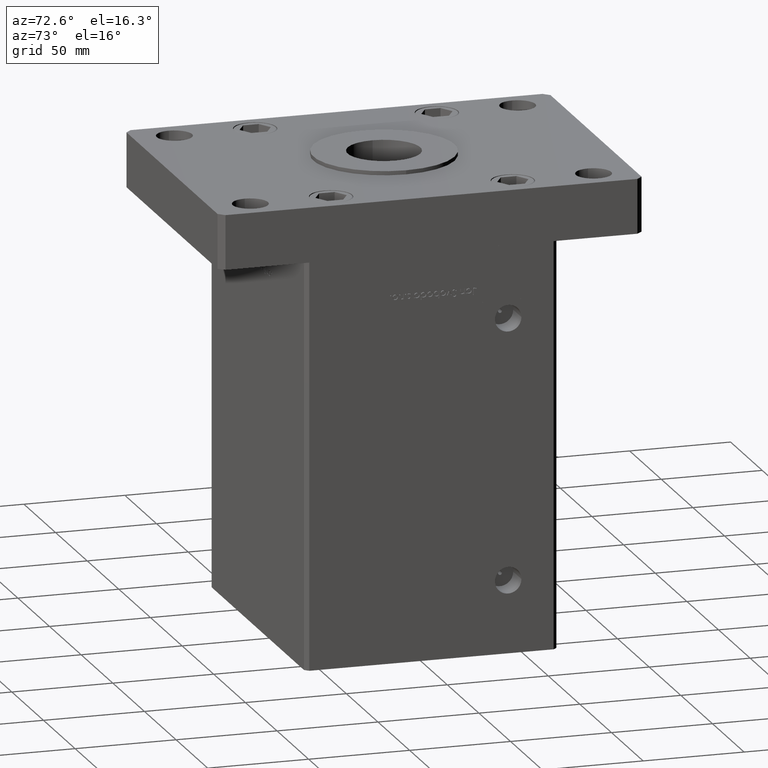
[diagram: clean part render]
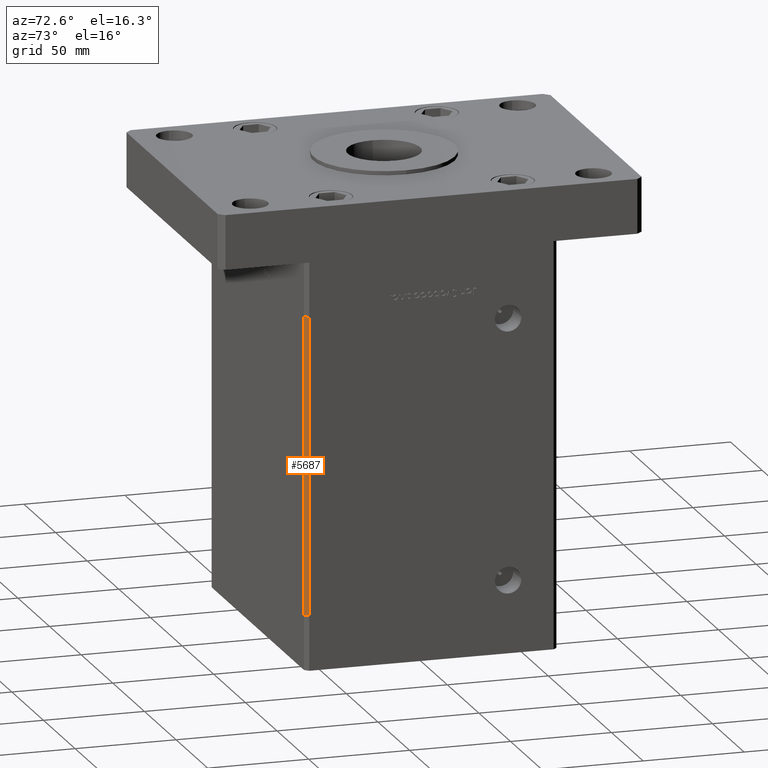
[diagram: same view with one face highlighted and labeled with its STEP entity id]
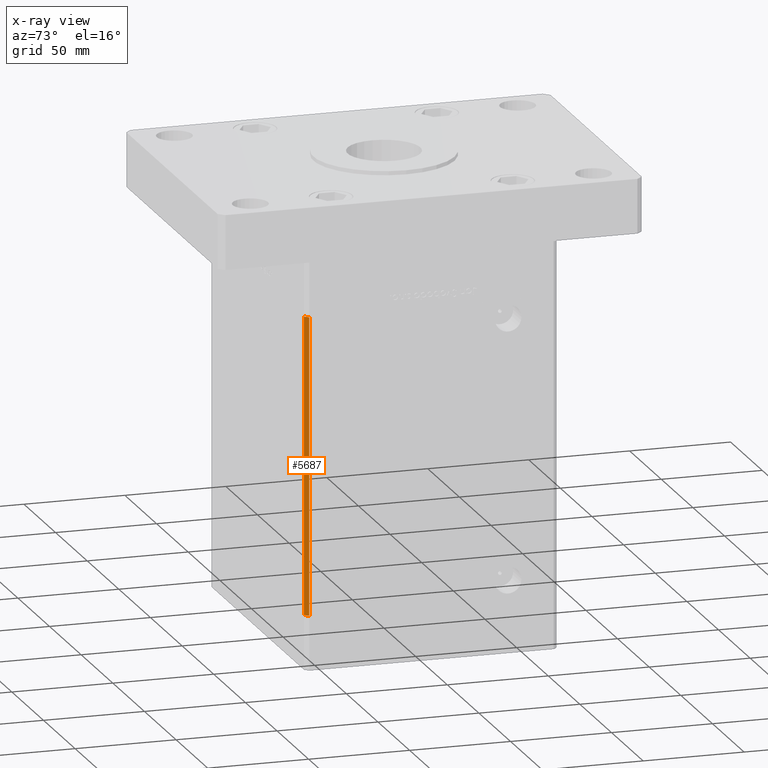
[diagram: x-ray of the same camera — body ghosted, the highlighted face saturated]
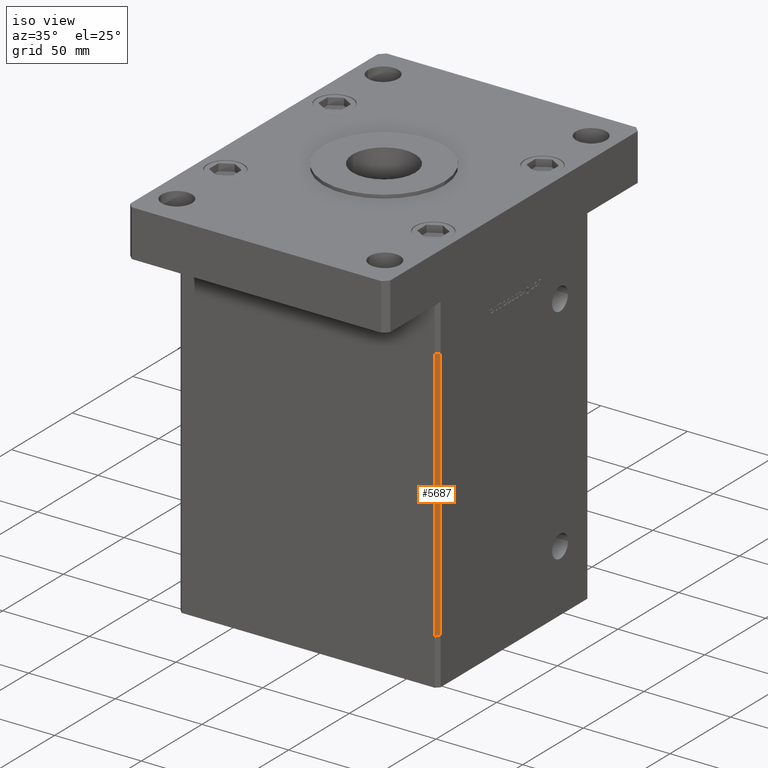
[diagram: same view with one face highlighted and labeled with its STEP entity id]
A machine part, auxiliary view. The second image highlights one B-rep face of the part: STEP entity #5687.
The next image is the same camera in x-ray: the body ghosted, the highlighted face saturated — about 0% of this face is hidden behind the body in this view.
A second angle (iso view) of the same face is appended — the face is thin or edge-on in the first view.
In plain terms, the highlighted planar face has unit normal (0.7071, -0.7071, 0).
Its self-contained STEP definition (entity closure, byte-faithful):
#439 = DIRECTION ( 'NONE',  ( -0.000000000000000000, -0.000000000000000000, -1.000000000000000000 ) ) ;
#2057 = VERTEX_POINT ( 'NONE', #42624 ) ;
#2249 = VERTEX_POINT ( 'NONE', #2905 ) ;
#2696 = DIRECTION ( 'NONE',  ( -0.000000000000000000, -0.000000000000000000, -1.000000000000000000 ) ) ;
#2905 = CARTESIAN_POINT ( 'NONE',  ( 74.99999999999998579, -60.50000000000000000, 0.000000000000000000 ) ) ;
#3438 = LINE ( 'NONE', #8318, #12022 ) ;
#4934 = EDGE_CURVE ( 'NONE', #44162, #2057, #44740, .T. ) ;
#5687 = ADVANCED_FACE ( 'NONE', ( #21124 ), #37642, .T. ) ;
#7024 = VECTOR ( 'NONE', #52079, 1000.000000000000114 ) ;
#8318 = CARTESIAN_POINT ( 'NONE',  ( 72.99999999999998579, -62.50000000000000000, 147.0000000000000000 ) ) ;
#8388 = DIRECTION ( 'NONE',  ( 0.7071067811865475727, -0.7071067811865475727, 0.000000000000000000 ) ) ;
#9205 = DIRECTION ( 'NONE',  ( 0.7071067811865474617, 0.7071067811865474617, 0.000000000000000000 ) ) ;
#9316 = CARTESIAN_POINT ( 'NONE',  ( 74.99999999999998579, -60.50000000000000000, 0.000000000000000000 ) ) ;
#12022 = VECTOR ( 'NONE', #439, 1000.000000000000000 ) ;
#12471 = EDGE_LOOP ( 'NONE', ( #16322, #43609, #29103, #44486 ) ) ;
#15653 = CARTESIAN_POINT ( 'NONE',  ( 72.99999999999998579, -62.50000000000000000, 0.000000000000000000 ) ) ;
#16322 = ORIENTED_EDGE ( 'NONE', *, *, #27818, .F. ) ;
#19814 = CARTESIAN_POINT ( 'NONE',  ( 74.99999999999998579, -60.50000000000000000, 147.0000000000000000 ) ) ;
#21124 = FACE_OUTER_BOUND ( 'NONE', #12471, .T. ) ;
#26359 = LINE ( 'NONE', #9316, #36750 ) ;
#26733 = VERTEX_POINT ( 'NONE', #15653 ) ;
#27818 = EDGE_CURVE ( 'NONE', #2249, #26733, #26359, .T. ) ;
#29103 = ORIENTED_EDGE ( 'NONE', *, *, #4934, .T. ) ;
#29512 = CARTESIAN_POINT ( 'NONE',  ( 74.99999999999998579, -60.50000000000000000, 147.0000000000000000 ) ) ;
#30420 = DIRECTION ( 'NONE',  ( -0.7071067811865474617, -0.7071067811865474617, 0.000000000000000000 ) ) ;
#31974 = CARTESIAN_POINT ( 'NONE',  ( 74.99999999999998579, -60.50000000000000000, 147.0000000000000000 ) ) ;
#36750 = VECTOR ( 'NONE', #30420, 1000.000000000000114 ) ;
#37642 = PLANE ( 'NONE',  #41674 ) ;
#39827 = LINE ( 'NONE', #31974, #42389 ) ;
#41674 = AXIS2_PLACEMENT_3D ( 'NONE', #29512, #8388, #9205 ) ;
#42389 = VECTOR ( 'NONE', #2696, 1000.000000000000000 ) ;
#42624 = CARTESIAN_POINT ( 'NONE',  ( 72.99999999999998579, -62.50000000000000000, 147.0000000000000000 ) ) ;
#43609 = ORIENTED_EDGE ( 'NONE', *, *, #47223, .F. ) ;
#43681 = EDGE_CURVE ( 'NONE', #2057, #26733, #3438, .T. ) ;
#44162 = VERTEX_POINT ( 'NONE', #45642 ) ;
#44486 = ORIENTED_EDGE ( 'NONE', *, *, #43681, .T. ) ;
#44740 = LINE ( 'NONE', #19814, #7024 ) ;
#45642 = CARTESIAN_POINT ( 'NONE',  ( 74.99999999999998579, -60.50000000000000000, 147.0000000000000000 ) ) ;
#47223 = EDGE_CURVE ( 'NONE', #44162, #2249, #39827, .T. ) ;
#52079 = DIRECTION ( 'NONE',  ( -0.7071067811865474617, -0.7071067811865474617, 0.000000000000000000 ) ) ;